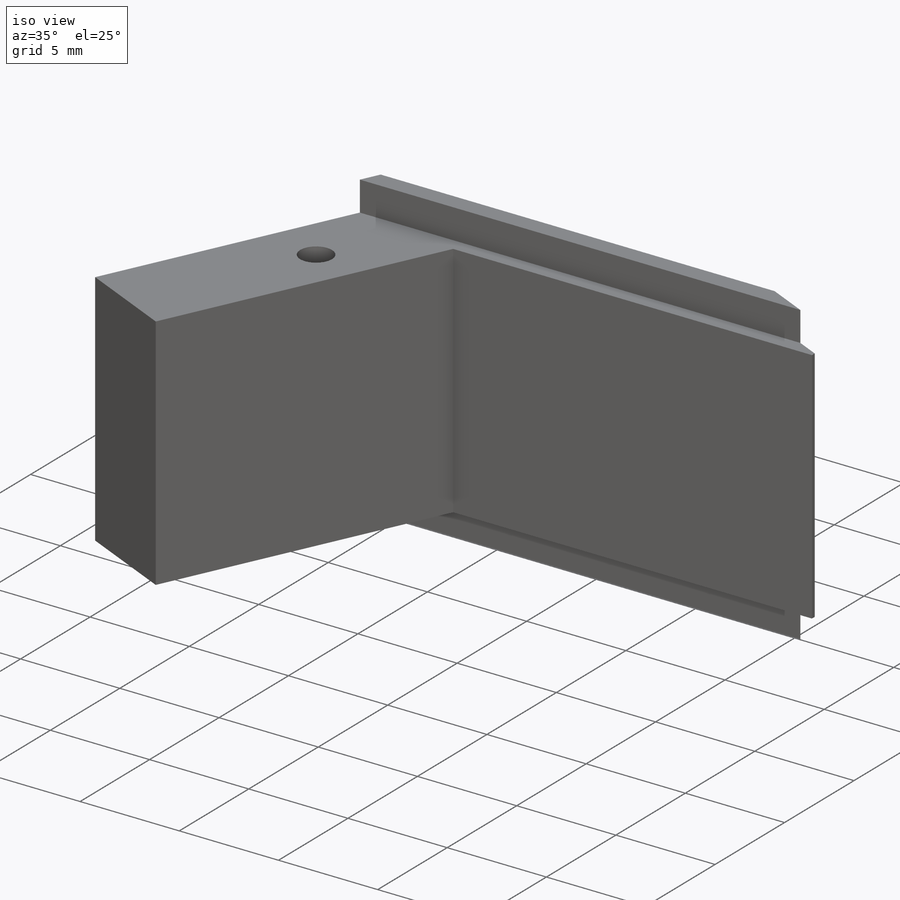
[diagram: iso view]
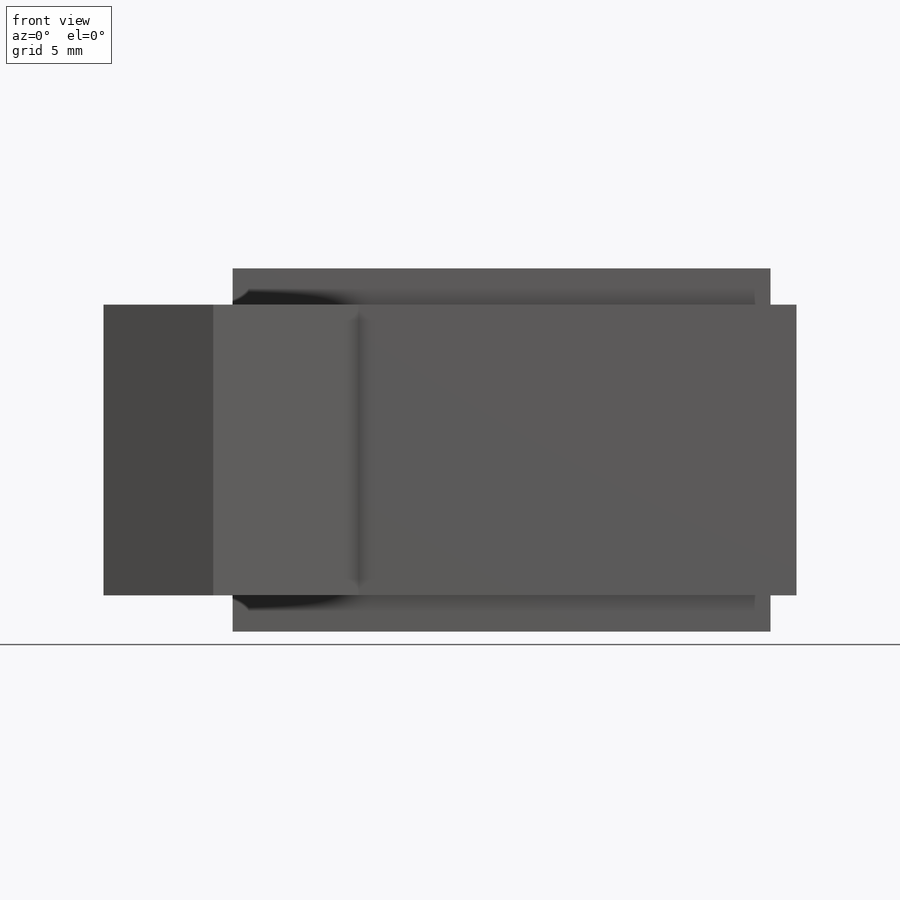
[diagram: front view]
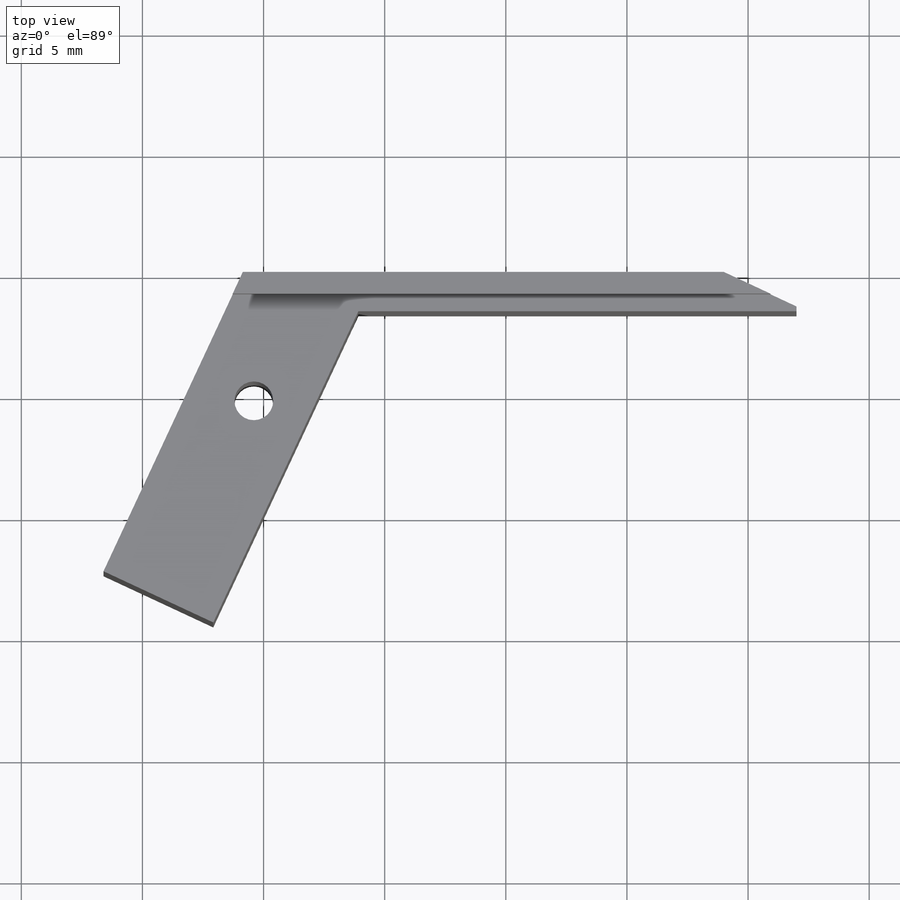
[diagram: top view]
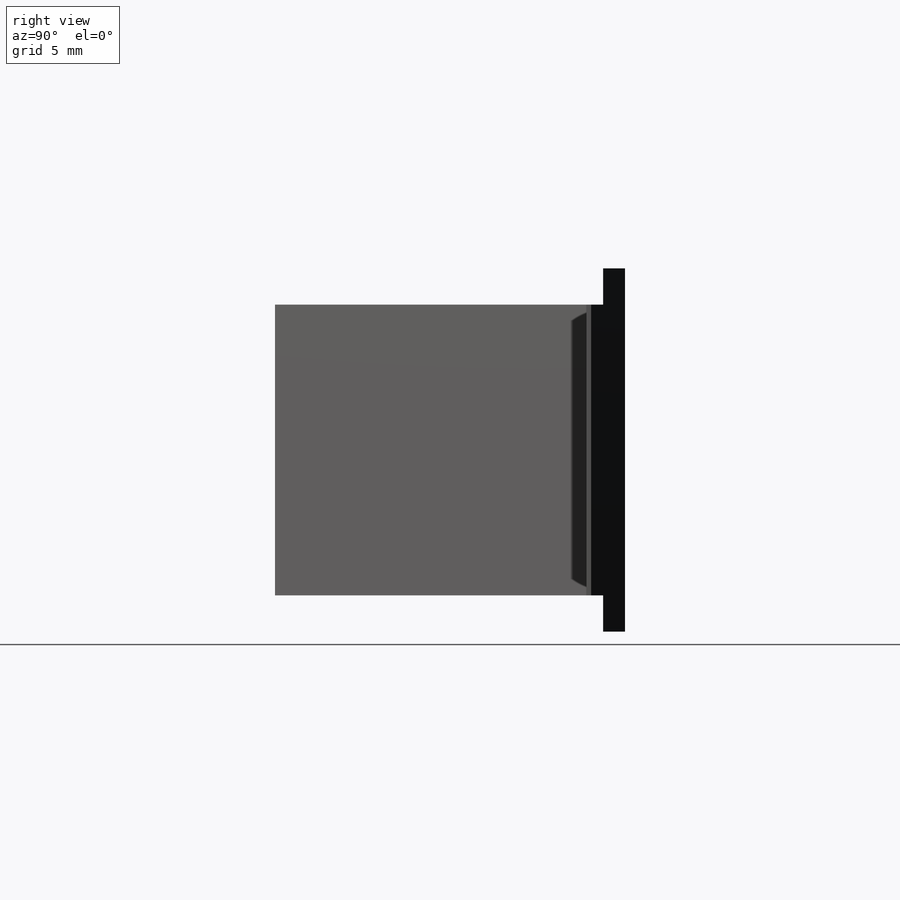
[diagram: right view]
SOLIDWORKS PART (.sldprt)
format: sldprt  version: not decoded by parser v0  size: 227,328 bytes
history: native  units: mm
features: sketch x6, cut_extrude x4, plane x3, extrude x2, material x1 (+13 scaffold rows collapsed)
feature tree (29):
  scaffold x13  (default folders/planes/origin — collapsed)
  material  "2024-T4"
  plane  "Спереди"
  plane  "Сверху"
  plane  "Справа"
  sketch  "Эскиз1"  dims[D1=15.0mm D2=27.0mm]
  extrude  "Бобышка-Вытянуть1"  Depth=11mm
  sketch  "Эскиз5"  dims[c1.D1=1.6mm c1.D2=~18.428572mm c2.D2=25.0deg c2.D3=5.0mm c2.D4=0.2mm]
  cut_extrude  "Вырез-Вытянуть6"  [1 undecoded]
  sketch  "Эскиз2"  dims[D1=12.0mm D2=1.5mm]
  cut_extrude  "Вырез-Вытянуть1"  Depth=0.7mm
  sketch  "Эскиз3"  dims[c1.D1=~8.901882mm c2.D1=25.0deg]
  cut_extrude  "Вырез-Вытянуть2"  [1 undecoded]
  sketch  "Эскиз6"
  extrude  "Бобышка-Вытянуть2"  Depth=22mm
  sketch  "Эскиз7"  dims[c1.D2=~1.81545mm c1.D1=4.5mm c2.D2=3.0mm]
  cut_extrude  "Вырез-Вытянуть7"  [1 undecoded]
decode coverage: 8 of 12 modeling features carry decoded parameters
note: ~ marks probable driven/reference dimensions
note: 3 parameter values undecoded
summary: no parameter record found for 3 features
note: suppression state not decoded; provenance and decode notes live in map.json
